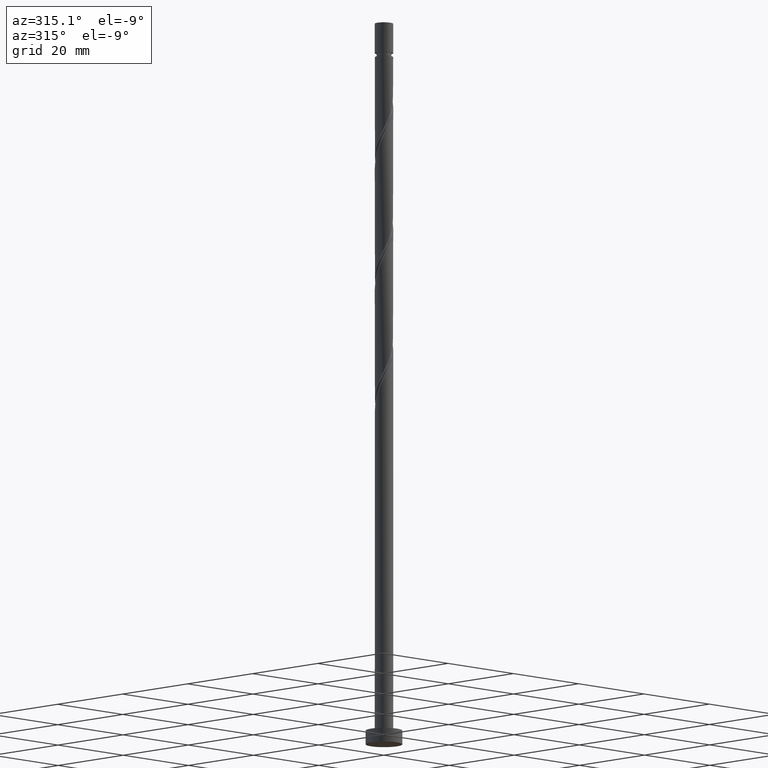
[diagram: clean part render]
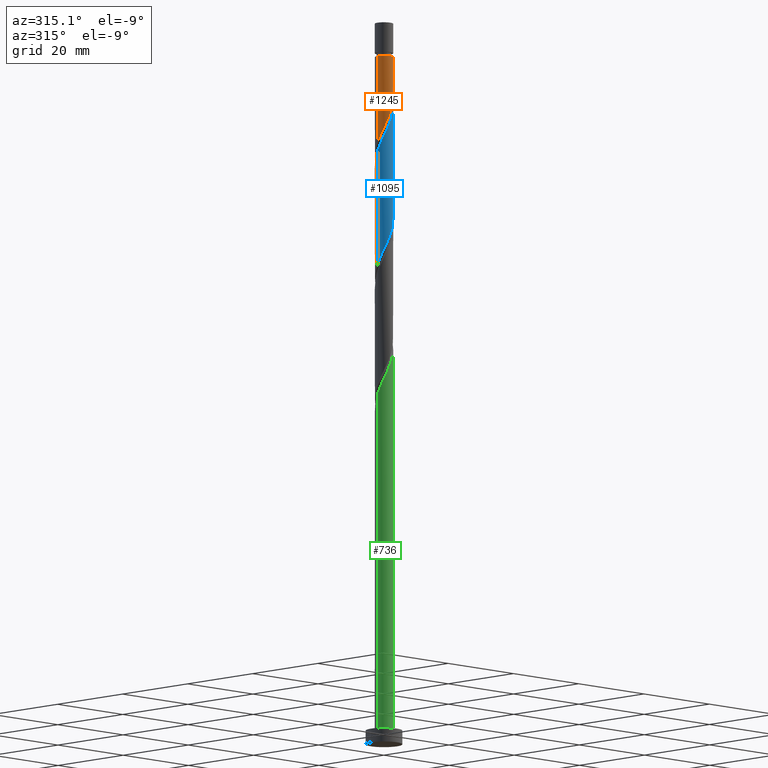
[diagram: same view with three faces highlighted in distinct colors, each labeled with its STEP entity id]
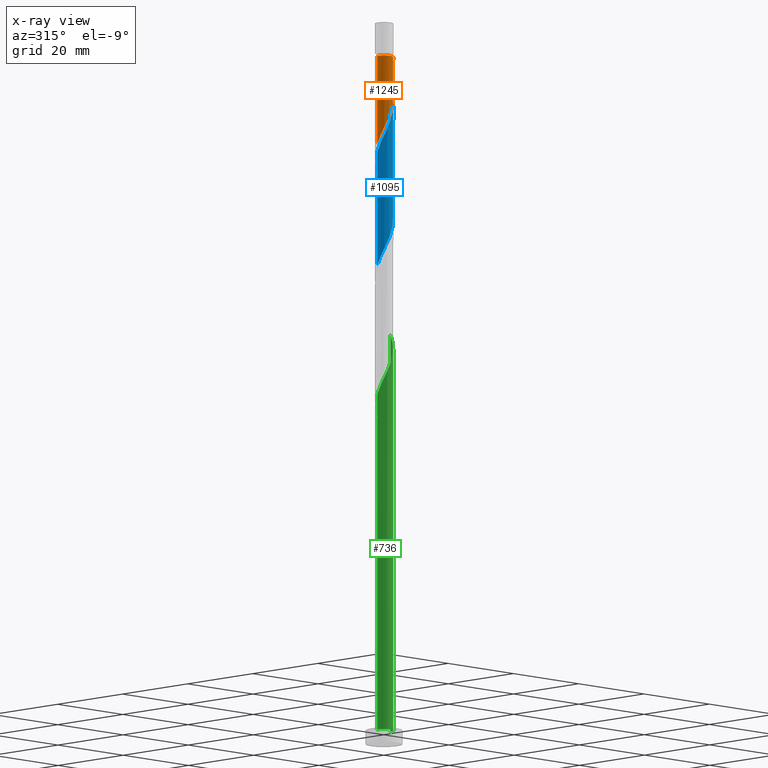
[diagram: x-ray of the same camera — body ghosted, the three highlighted faces saturated]
A machine part, auxiliary view with three faces highlighted in distinct colors.
The next image is the same camera in x-ray (body ghosted, the three faces saturated) — at least one of them is partly hidden behind the body in this view.
Their STEP definitions:

[orange] entity #1245 — the highlighted cylindrical surface (edge-blend (fillet) strip) has radius 2 mm, axis along (-0, -0, -1).
#27 = ORIENTED_EDGE ( 'NONE', *, *, #471, .F. ) ;
#46 = ORIENTED_EDGE ( 'NONE', *, *, #1607, .F. ) ;
#109 = CARTESIAN_POINT ( 'NONE',  ( 0.4568343776401059264, -1.968245701812300519, 139.4877479155001936 ) ) ;
#165 = CARTESIAN_POINT ( 'NONE',  ( 0.000000000000000000, 0.000000000000000000, 158.3300000000000125 ) ) ;
#203 = LINE ( 'NONE', #703, #1210 ) ;
#211 = CARTESIAN_POINT ( 'NONE',  ( -1.948211798543799889, -0.4521844623765077786, 132.8210812488334795 ) ) ;
#296 = AXIS2_PLACEMENT_3D ( 'NONE', #165, #676, #1464 ) ;
#298 = FACE_OUTER_BOUND ( 'NONE', #631, .T. ) ;
#320 = DIRECTION ( 'NONE',  ( -1.000000000000000000, 0.000000000000000000, 0.000000000000000000 ) ) ;
#329 = DIRECTION ( 'NONE',  ( -0.000000000000000000, -0.000000000000000000, -1.000000000000000000 ) ) ;
#341 = CIRCLE ( 'NONE', #1289, 1.999999999999994005 ) ;
#350 = VERTEX_POINT ( 'NONE', #1237 ) ;
#376 = VERTEX_POINT ( 'NONE', #1494 ) ;
#383 = CARTESIAN_POINT ( 'NONE',  ( -1.188337955536406865, -1.634179211325358594, 135.8513842791364823 ) ) ;
#420 = VERTEX_POINT ( 'NONE', #829 ) ;
#422 = EDGE_CURVE ( 'NONE', #350, #1340, #963, .T. ) ;
#440 = CARTESIAN_POINT ( 'NONE',  ( 0.000000000000000000, 0.000000000000000000, 151.0028994306516665 ) ) ;
#471 = EDGE_CURVE ( 'NONE', #420, #376, #203, .T. ) ;
#473 = CARTESIAN_POINT ( 'NONE',  ( -0.6798004310727958632, -1.902776961498551467, 137.0635054912577289 ) ) ;
#502 = CARTESIAN_POINT ( 'NONE',  ( 1.786663747202081876, -0.9436744384215536297, 143.1241115518637912 ) ) ;
#615 = CARTESIAN_POINT ( 'NONE',  ( -1.600603406160404418, -1.233189980288572629, 134.6392630670152926 ) ) ;
#624 = CARTESIAN_POINT ( 'NONE',  ( 0.1703224295138019428, -1.992734370156874713, 138.8816873094395703 ) ) ;
#631 = EDGE_LOOP ( 'NONE', ( #27, #813, #1444, #46 ) ) ;
#676 = DIRECTION ( 'NONE',  ( -0.000000000000000000, -0.000000000000000000, -1.000000000000000000 ) ) ;
#688 = DIRECTION ( 'NONE',  ( -0.000000000000000000, -0.000000000000000000, -1.000000000000000000 ) ) ;
#703 = CARTESIAN_POINT ( 'NONE',  ( 2.000000000000000000, 2.449293598294705921E-16, 158.3300000000000125 ) ) ;
#729 = CARTESIAN_POINT ( 'NONE',  ( -1.883197487972271267, -0.7322950311120137723, 133.4271418548941028 ) ) ;
#742 = CARTESIAN_POINT ( 'NONE',  ( 1.980155124014550738, -0.4020876473299553888, 144.3362327639850378 ) ) ;
#756 =( BOUNDED_CURVE ( )  B_SPLINE_CURVE ( 2, ( #1624, #1253, #1129, #742, #1621, #502, #1259, #1528, #1155, #1017, #1370, #109, #624, #886, #1502, #473, #1659, #383, #1117, #615, #1136, #729, #211, #1249, #1535 ),
 .UNSPECIFIED., .F., .T. ) 
 B_SPLINE_CURVE_WITH_KNOTS ( ( 3, 2, 2, 2, 2, 2, 2, 2, 2, 2, 2, 2, 3 ),
 ( 0.3045252162417514397, 0.3068181818181818232, 0.3181818181818181768, 0.3295454545454545303, 0.3409090909090908839, 0.3522727272727272929, 0.3636363636363636465, 0.3750000000000000000, 0.3863636363636363535, 0.3977272727272727071, 0.4090909090909091161, 0.4204545454545454697, 0.4295252162417514952 ),
 .UNSPECIFIED. ) 
 CURVE ( )  GEOMETRIC_REPRESENTATION_ITEM ( )  RATIONAL_B_SPLINE_CURVE ( ( 0.9061101570135619010, 0.9072237824201440093, 0.9090909090909213841, 0.8998376744372236224, 0.9090909090909213841, 0.8998376744372236224, 0.9090909090909213841, 0.8998376744372236224, 0.9090909090909213841, 0.8998376744372236224, 0.9090909090909213841, 0.8998376744372236224, 0.9090909090909213841, 0.8998376744372236224, 0.9090909090909213841, 0.8998376744372236224, 0.9090909090909213841, 0.8998376744372236224, 0.9090909090909213841, 0.8998376744372236224, 0.9090909090909213841, 0.8998376744372236224, 0.9090909090909213841, 0.9017048011080009973, 0.9061101570135619010 ) ) 
 REPRESENTATION_ITEM ( '' )  );
#806 = CYLINDRICAL_SURFACE ( 'NONE', #296, 2.000000000000000000 ) ;
#813 = ORIENTED_EDGE ( 'NONE', *, *, #1489, .T. ) ;
#829 = CARTESIAN_POINT ( 'NONE',  ( 1.999999999999994005, 2.449293598294701977E-16, 151.0028994306516665 ) ) ;
#849 = CARTESIAN_POINT ( 'NONE',  ( -2.000000000000000000, 0.000000000000000000, 158.3300000000000125 ) ) ;
#886 = CARTESIAN_POINT ( 'NONE',  ( -0.1161895186125009444, -2.017223038501448240, 138.2756267033789186 ) ) ;
#963 = LINE ( 'NONE', #849, #1601 ) ;
#1017 = CARTESIAN_POINT ( 'NONE',  ( 0.9928482695149667414, -1.759812803970227879, 140.6998691276213549 ) ) ;
#1117 = CARTESIAN_POINT ( 'NONE',  ( -1.394470680848406419, -1.433684595806965500, 135.2453236730759158 ) ) ;
#1129 = CARTESIAN_POINT ( 'NONE',  ( 1.996690616564939402, -0.1150068768444772321, 144.9422933700455758 ) ) ;
#1136 = CARTESIAN_POINT ( 'NONE',  ( -1.741900447066337954, -0.9827425057002935338, 134.0332024609546977 ) ) ;
#1155 = CARTESIAN_POINT ( 'NONE',  ( 1.220637884402353768, -1.584311571365224047, 141.3059297336819782 ) ) ;
#1210 = VECTOR ( 'NONE', #1371, 1000.000000000000000 ) ;
#1237 = CARTESIAN_POINT ( 'NONE',  ( -1.999999999999994005, 0.000000000000000000, 151.0028994306516665 ) ) ;
#1245 = ADVANCED_FACE ( 'NONE', ( #298 ), #806, .T. ) ;
#1249 = CARTESIAN_POINT ( 'NONE',  ( -2.000000000000000888, -0.2290578547702420975, 132.3383138629238545 ) ) ;
#1253 = CARTESIAN_POINT ( 'NONE',  ( 1.999999999999999112, -0.05755105304764763369, 145.0635892385676584 ) ) ;
#1259 = CARTESIAN_POINT ( 'NONE',  ( 1.617545623245911779, -1.176242388590886367, 142.5180509458032247 ) ) ;
#1289 = AXIS2_PLACEMENT_3D ( 'NONE', #440, #688, #320 ) ;
#1340 = VERTEX_POINT ( 'NONE', #1353 ) ;
#1353 = CARTESIAN_POINT ( 'NONE',  ( -2.000000000000000000, 1.734991201605581417E-15, 131.8523539099525408 ) ) ;
#1370 = CARTESIAN_POINT ( 'NONE',  ( 0.7248413235775362784, -1.864029252891264088, 140.0938085215607884 ) ) ;
#1371 = DIRECTION ( 'NONE',  ( -0.000000000000000000, -0.000000000000000000, -1.000000000000000000 ) ) ;
#1444 = ORIENTED_EDGE ( 'NONE', *, *, #422, .T. ) ;
#1464 = DIRECTION ( 'NONE',  ( -1.000000000000000000, 0.000000000000000000, 0.000000000000000000 ) ) ;
#1489 = EDGE_CURVE ( 'NONE', #420, #350, #341, .T. ) ;
#1494 = CARTESIAN_POINT ( 'NONE',  ( 1.999999999999999556, 5.907944177881074593E-16, 145.1856872432858836 ) ) ;
#1502 = CARTESIAN_POINT ( 'NONE',  ( -0.3979949748426483969, -1.959999999999999964, 137.6695660973183521 ) ) ;
#1528 = CARTESIAN_POINT ( 'NONE',  ( 1.448427499289742348, -1.408810338760219549, 141.9119903397425446 ) ) ;
#1535 = CARTESIAN_POINT ( 'NONE',  ( -2.000000000000000000, 1.734991201605581417E-15, 131.8523539099525408 ) ) ;
#1601 = VECTOR ( 'NONE', #329, 1000.000000000000000 ) ;
#1607 = EDGE_CURVE ( 'NONE', #376, #1340, #756, .T. ) ;
#1621 = CARTESIAN_POINT ( 'NONE',  ( 1.883409435608316418, -0.6728810428757545647, 143.7301721579244145 ) ) ;
#1624 = CARTESIAN_POINT ( 'NONE',  ( 1.999999999999999556, 5.907944177881074593E-16, 145.1856872432858836 ) ) ;
#1659 = CARTESIAN_POINT ( 'NONE',  ( -0.9340691933046018081, -1.768478086411955141, 136.4574448851971340 ) ) ;

[blue] entity #1095 — the highlighted cylindrical surface (edge-blend (fillet) strip) has radius 2 mm, axis along (-0, -0, -1).
#5 = CARTESIAN_POINT ( 'NONE',  ( -1.741900447066337954, -0.9827425057002935338, 107.3665357942880405 ) ) ;
#13 = CARTESIAN_POINT ( 'NONE',  ( 1.999999999999999556, -0.05755105304764623203, 118.3969225719010012 ) ) ;
#31 = CARTESIAN_POINT ( 'NONE',  ( 1.617545623245911779, -1.176242388590886367, 115.8513842791365107 ) ) ;
#55 = ORIENTED_EDGE ( 'NONE', *, *, #1024, .T. ) ;
#75 = CARTESIAN_POINT ( 'NONE',  ( 2.000000000000003553, 1.046977449244738821E-15, 143.4867782846841067 ) ) ;
#80 = VERTEX_POINT ( 'NONE', #784 ) ;
#94 = VERTEX_POINT ( 'NONE', #1307 ) ;
#103 = CARTESIAN_POINT ( 'NONE',  ( -0.1703224295138032196, -1.992734370156877821, 136.4574448851970772 ) ) ;
#117 = CARTESIAN_POINT ( 'NONE',  ( 1.741900447066339952, -0.9827425057002954212, 141.3059297336819213 ) ) ;
#123 = CARTESIAN_POINT ( 'NONE',  ( 1.448427499289742348, -1.408810338760219549, 115.2453236730759016 ) ) ;
#146 = VERTEX_POINT ( 'NONE', #75 ) ;
#150 = EDGE_CURVE ( 'NONE', #146, #1570, #1604, .T. ) ;
#219 = CARTESIAN_POINT ( 'NONE',  ( 1.948211798543802775, -0.4521844623765089999, 142.5180509458031679 ) ) ;
#237 = CARTESIAN_POINT ( 'NONE',  ( 1.188337955536409529, -1.634179211325361258, 139.4877479155001936 ) ) ;
#246 =( BOUNDED_CURVE ( )  B_SPLINE_CURVE ( 2, ( #600, #896, #1631, #730, #1008, #492, #377, #1513, #484, #1118, #888, #1415, #103, #1520, #1643, #1407, #754, #237, #366, #474, #117, #1157, #219, #984, #878 ),
 .UNSPECIFIED., .F., .T. ) 
 B_SPLINE_CURVE_WITH_KNOTS ( ( 3, 2, 2, 2, 2, 2, 2, 2, 2, 2, 2, 2, 3 ),
 ( 0.5545252162417516617, 0.5568181818181818787, 0.5681818181818181213, 0.5795454545454545858, 0.5909090909090908283, 0.6022727272727272929, 0.6136363636363636465, 0.6250000000000000000, 0.6363636363636363535, 0.6477272727272727071, 0.6590909090909091717, 0.6704545454545454142, 0.6795252162417515507 ),
 .UNSPECIFIED. ) 
 CURVE ( )  GEOMETRIC_REPRESENTATION_ITEM ( )  RATIONAL_B_SPLINE_CURVE ( ( 0.9061101570135694505, 0.9072237824201515588, 0.9090909090909289336, 0.8998376744372310609, 0.9090909090909289336, 0.8998376744372310609, 0.9090909090909289336, 0.8998376744372310609, 0.9090909090909289336, 0.8998376744372310609, 0.9090909090909289336, 0.8998376744372310609, 0.9090909090909289336, 0.8998376744372310609, 0.9090909090909289336, 0.8998376744372310609, 0.9090909090909289336, 0.8998376744372310609, 0.9090909090909289336, 0.8998376744372310609, 0.9090909090909289336, 0.8998376744372310609, 0.9090909090909289336, 0.9017048011080084358, 0.9061101570135693395 ) ) 
 REPRESENTATION_ITEM ( '' )  );
#262 = CARTESIAN_POINT ( 'NONE',  ( -1.600603406160404418, -1.233189980288572629, 107.9725964003486212 ) ) ;
#274 = CARTESIAN_POINT ( 'NONE',  ( -0.6798004310727958632, -1.902776961498551467, 110.3968388245910717 ) ) ;
#280 = EDGE_CURVE ( 'NONE', #1570, #94, #985, .T. ) ;
#282 = CARTESIAN_POINT ( 'NONE',  ( -1.883197487972271267, -0.7322950311120137723, 106.7604751882274030 ) ) ;
#292 = CARTESIAN_POINT ( 'NONE',  ( -2.000000000000000888, -0.2290578547702420975, 105.6716471962571831 ) ) ;
#338 = VECTOR ( 'NONE', #1582, 1000.000000000000000 ) ;
#362 = DIRECTION ( 'NONE',  ( -1.000000000000000000, 0.000000000000000000, 0.000000000000000000 ) ) ;
#366 = CARTESIAN_POINT ( 'NONE',  ( 1.394470680848407751, -1.433684595806967943, 140.0938085215606748 ) ) ;
#370 = DIRECTION ( 'NONE',  ( -0.000000000000000000, -0.000000000000000000, -1.000000000000000000 ) ) ;
#377 = CARTESIAN_POINT ( 'NONE',  ( -1.617545623245914443, -1.176242388590888366, 132.8210812488334511 ) ) ;
#396 = CARTESIAN_POINT ( 'NONE',  ( 1.996690616564939402, -0.1150068768444772321, 118.2756267033789470 ) ) ;
#415 = CARTESIAN_POINT ( 'NONE',  ( 0.4568343776401059264, -1.968245701812300519, 112.8210812488334938 ) ) ;
#463 = CARTESIAN_POINT ( 'NONE',  ( 2.000000000000000000, 2.449293598294705921E-16, 158.3300000000000125 ) ) ;
#474 = CARTESIAN_POINT ( 'NONE',  ( 1.600603406160407305, -1.233189980288575738, 140.6998691276213265 ) ) ;
#484 = CARTESIAN_POINT ( 'NONE',  ( -1.220637884402356876, -1.584311571365225380, 134.0332024609546409 ) ) ;
#488 = DIRECTION ( 'NONE',  ( -0.000000000000000000, -0.000000000000000000, -1.000000000000000000 ) ) ;
#492 = CARTESIAN_POINT ( 'NONE',  ( -1.786663747202085206, -0.9436744384215547399, 132.2150206427728563 ) ) ;
#544 = CARTESIAN_POINT ( 'NONE',  ( 1.999999999999999556, -2.191174233062221259E-15, 118.5190205766192122 ) ) ;
#566 = EDGE_LOOP ( 'NONE', ( #639, #1309, #55, #725 ) ) ;
#600 = CARTESIAN_POINT ( 'NONE',  ( -2.000000000000003553, -1.151675194169212802E-15, 130.1534449513507923 ) ) ;
#636 = CARTESIAN_POINT ( 'NONE',  ( -0.1161895186125009444, -2.017223038501448240, 111.6089600367122756 ) ) ;
#639 = ORIENTED_EDGE ( 'NONE', *, *, #150, .F. ) ;
#641 = EDGE_CURVE ( 'NONE', #80, #146, #246, .T. ) ;
#725 = ORIENTED_EDGE ( 'NONE', *, *, #280, .F. ) ;
#726 = LINE ( 'NONE', #734, #1629 ) ;
#730 = CARTESIAN_POINT ( 'NONE',  ( -1.980155124014554291, -0.4020876473299552778, 131.0028994306516665 ) ) ;
#734 = CARTESIAN_POINT ( 'NONE',  ( -2.000000000000000000, 0.000000000000000000, 158.3300000000000125 ) ) ;
#754 = CARTESIAN_POINT ( 'NONE',  ( 0.9340691933046020301, -1.768478086411958028, 138.8816873094395419 ) ) ;
#772 = CARTESIAN_POINT ( 'NONE',  ( -2.000000000000000000, 1.734991201605581417E-15, 105.1856872432858836 ) ) ;
#784 = CARTESIAN_POINT ( 'NONE',  ( -2.000000000000003553, -1.151675194169212802E-15, 130.1534449513507923 ) ) ;
#788 = CARTESIAN_POINT ( 'NONE',  ( -1.948211798543799889, -0.4521844623765077786, 106.1544145821668224 ) ) ;
#878 = CARTESIAN_POINT ( 'NONE',  ( 2.000000000000003553, 1.046977449244738821E-15, 143.4867782846841067 ) ) ;
#888 = CARTESIAN_POINT ( 'NONE',  ( -0.7248413235775382768, -1.864029252891266530, 135.2453236730758874 ) ) ;
#896 = CARTESIAN_POINT ( 'NONE',  ( -2.000000000000003109, -0.05755105304765149865, 130.2755429560689890 ) ) ;
#901 = CARTESIAN_POINT ( 'NONE',  ( -1.188337955536406865, -1.634179211325358594, 109.1847176124698251 ) ) ;
#931 = CARTESIAN_POINT ( 'NONE',  ( 0.1703224295138019428, -1.992734370156874713, 112.2150206427728705 ) ) ;
#964 = AXIS2_PLACEMENT_3D ( 'NONE', #1636, #488, #362 ) ;
#984 = CARTESIAN_POINT ( 'NONE',  ( 2.000000000000004441, -0.2290578547702423473, 143.0008183317128498 ) ) ;
#985 =( BOUNDED_CURVE ( )  B_SPLINE_CURVE ( 2, ( #544, #13, #396, #1175, #1565, #1284, #31, #123, #1421, #1051, #1299, #415, #931, #636, #1060, #274, #1439, #901, #1557, #262, #5, #282, #788, #292, #772 ),
 .UNSPECIFIED., .F., .T. ) 
 B_SPLINE_CURVE_WITH_KNOTS ( ( 3, 2, 2, 2, 2, 2, 2, 2, 2, 2, 2, 2, 3 ),
 ( 0.5545252162417513286, 0.5568181818181817677, 0.5681818181818182323, 0.5795454545454545858, 0.5909090909090909394, 0.6022727272727272929, 0.6136363636363636465, 0.6250000000000000000, 0.6363636363636363535, 0.6477272727272727071, 0.6590909090909090606, 0.6704545454545454142, 0.6795252162417514397 ),
 .UNSPECIFIED. ) 
 CURVE ( )  GEOMETRIC_REPRESENTATION_ITEM ( )  RATIONAL_B_SPLINE_CURVE ( ( 0.9061101570135616790, 0.9072237824201438983, 0.9090909090909213841, 0.8998376744372236224, 0.9090909090909213841, 0.8998376744372236224, 0.9090909090909213841, 0.8998376744372236224, 0.9090909090909213841, 0.8998376744372236224, 0.9090909090909213841, 0.8998376744372236224, 0.9090909090909213841, 0.8998376744372236224, 0.9090909090909213841, 0.8998376744372236224, 0.9090909090909213841, 0.8998376744372236224, 0.9090909090909213841, 0.8998376744372236224, 0.9090909090909213841, 0.8998376744372236224, 0.9090909090909213841, 0.9017048011080009973, 0.9061101570135619010 ) ) 
 REPRESENTATION_ITEM ( '' )  );
#1008 = CARTESIAN_POINT ( 'NONE',  ( -1.883409435608319304, -0.6728810428757547868, 131.6089600367122330 ) ) ;
#1024 = EDGE_CURVE ( 'NONE', #80, #94, #726, .T. ) ;
#1051 = CARTESIAN_POINT ( 'NONE',  ( 0.9928482695149667414, -1.759812803970227879, 114.0332024609546977 ) ) ;
#1060 = CARTESIAN_POINT ( 'NONE',  ( -0.3979949748426483969, -1.959999999999999964, 111.0028994306516665 ) ) ;
#1095 = ADVANCED_FACE ( 'NONE', ( #1382 ), #1143, .T. ) ;
#1118 = CARTESIAN_POINT ( 'NONE',  ( -0.9928482695149695170, -1.759812803970230322, 134.6392630670153210 ) ) ;
#1143 = CYLINDRICAL_SURFACE ( 'NONE', #964, 2.000000000000000000 ) ;
#1157 = CARTESIAN_POINT ( 'NONE',  ( 1.883197487972274820, -0.7322950311120153266, 141.9119903397425446 ) ) ;
#1175 = CARTESIAN_POINT ( 'NONE',  ( 1.980155124014550738, -0.4020876473299553888, 117.6695660973183379 ) ) ;
#1284 = CARTESIAN_POINT ( 'NONE',  ( 1.786663747202081876, -0.9436744384215536297, 116.4574448851971198 ) ) ;
#1299 = CARTESIAN_POINT ( 'NONE',  ( 0.7248413235775362784, -1.864029252891264088, 113.4271418548941028 ) ) ;
#1307 = CARTESIAN_POINT ( 'NONE',  ( -2.000000000000000000, 1.734991201605581417E-15, 105.1856872432858836 ) ) ;
#1309 = ORIENTED_EDGE ( 'NONE', *, *, #641, .F. ) ;
#1380 = CARTESIAN_POINT ( 'NONE',  ( 1.999999999999999556, -2.191174233062221259E-15, 118.5190205766192122 ) ) ;
#1382 = FACE_OUTER_BOUND ( 'NONE', #566, .T. ) ;
#1407 = CARTESIAN_POINT ( 'NONE',  ( 0.6798004310727964183, -1.902776961498555464, 138.2756267033789470 ) ) ;
#1415 = CARTESIAN_POINT ( 'NONE',  ( -0.4568343776401067036, -1.968245701812304516, 135.8513842791364823 ) ) ;
#1421 = CARTESIAN_POINT ( 'NONE',  ( 1.220637884402353768, -1.584311571365224047, 114.6392630670153210 ) ) ;
#1439 = CARTESIAN_POINT ( 'NONE',  ( -0.9340691933046018081, -1.768478086411955141, 109.7907782185304484 ) ) ;
#1513 = CARTESIAN_POINT ( 'NONE',  ( -1.448427499289744125, -1.408810338760221548, 133.4271418548940744 ) ) ;
#1520 = CARTESIAN_POINT ( 'NONE',  ( 0.1161895186125001672, -2.017223038501451349, 137.0635054912577004 ) ) ;
#1557 = CARTESIAN_POINT ( 'NONE',  ( -1.394470680848406419, -1.433684595806965500, 108.5786570064092729 ) ) ;
#1565 = CARTESIAN_POINT ( 'NONE',  ( 1.883409435608316418, -0.6728810428757545647, 117.0635054912577431 ) ) ;
#1570 = VERTEX_POINT ( 'NONE', #1380 ) ;
#1582 = DIRECTION ( 'NONE',  ( -0.000000000000000000, -0.000000000000000000, -1.000000000000000000 ) ) ;
#1604 = LINE ( 'NONE', #463, #338 ) ;
#1629 = VECTOR ( 'NONE', #370, 1000.000000000000000 ) ;
#1631 = CARTESIAN_POINT ( 'NONE',  ( -1.996690616564942955, -0.1150068768444765244, 130.3968388245910148 ) ) ;
#1636 = CARTESIAN_POINT ( 'NONE',  ( 0.000000000000000000, 0.000000000000000000, 158.3300000000000125 ) ) ;
#1643 = CARTESIAN_POINT ( 'NONE',  ( 0.3979949748426481193, -1.960000000000002629, 137.6695660973183237 ) ) ;

[green] entity #736 — the highlighted cylindrical surface (edge-blend (fillet) strip) has radius 2 mm, axis along (-0, -0, -1).
#19 = EDGE_LOOP ( 'NONE', ( #1193, #297, #1406, #346 ) ) ;
#47 = CARTESIAN_POINT ( 'NONE',  ( 0.000000000000000000, 0.000000000000000000, 3.000000000000000000 ) ) ;
#52 = CARTESIAN_POINT ( 'NONE',  ( 2.000000000000003553, 1.046977449244738821E-15, 90.15344495135077807 ) ) ;
#69 = CARTESIAN_POINT ( 'NONE',  ( -1.883409435608319304, -0.6728810428757547868, 78.27562670337891859 ) ) ;
#83 = CARTESIAN_POINT ( 'NONE',  ( -2.000000000000003109, 9.998634640287257072E-15, 76.82011161801740684 ) ) ;
#86 = VERTEX_POINT ( 'NONE', #1055 ) ;
#110 = CYLINDRICAL_SURFACE ( 'NONE', #941, 2.000000000000000000 ) ;
#180 = CARTESIAN_POINT ( 'NONE',  ( 1.600603406160407305, -1.233189980288575738, 87.36653579428804051 ) ) ;
#207 = VECTOR ( 'NONE', #1134, 1000.000000000000000 ) ;
#212 = CARTESIAN_POINT ( 'NONE',  ( 0.1161895186125001672, -2.017223038501451349, 83.73017215792440027 ) ) ;
#297 = ORIENTED_EDGE ( 'NONE', *, *, #369, .F. ) ;
#318 = CARTESIAN_POINT ( 'NONE',  ( 0.3979949748426481193, -1.960000000000002629, 84.33623276398496671 ) ) ;
#346 = ORIENTED_EDGE ( 'NONE', *, *, #1200, .T. ) ;
#354 = CARTESIAN_POINT ( 'NONE',  ( -2.000000000000003109, 9.998634640287257072E-15, 76.82011161801742105 ) ) ;
#369 = EDGE_CURVE ( 'NONE', #758, #86, #481, .T. ) ;
#455 = CARTESIAN_POINT ( 'NONE',  ( 1.948211798543802775, -0.4521844623765089999, 89.18471761246983931 ) ) ;
#464 = CARTESIAN_POINT ( 'NONE',  ( -1.996690616564942955, -0.1150068768444765244, 77.06350549125771465 ) ) ;
#481 =( BOUNDED_CURVE ( )  B_SPLINE_CURVE ( 2, ( #83, #842, #464, #1341, #69, #1474, #1615, #835, #973, #1485, #1096, #562, #1589, #212, #318, #1356, #581, #1605, #572, #180, #1090, #697, #455, #819, #52 ),
 .UNSPECIFIED., .F., .T. ) 
 B_SPLINE_CURVE_WITH_KNOTS ( ( 3, 2, 2, 2, 2, 2, 2, 2, 2, 2, 2, 2, 3 ),
 ( 0.05452521624175097475, 0.05681818181818176772, 0.06818181818181823228, 0.07954545454545458583, 0.09090909090909093937, 0.1022727272727272929, 0.1136363636363636465, 0.1250000000000000000, 0.1363636363636363535, 0.1477272727272727071, 0.1590909090909090606, 0.1704545454545454142, 0.1795252162417516062 ),
 .UNSPECIFIED. ) 
 CURVE ( )  GEOMETRIC_REPRESENTATION_ITEM ( )  RATIONAL_B_SPLINE_CURVE ( ( 0.9061101570135690064, 0.9072237824201512257, 0.9090909090909289336, 0.8998376744372310609, 0.9090909090909289336, 0.8998376744372310609, 0.9090909090909289336, 0.8998376744372310609, 0.9090909090909289336, 0.8998376744372310609, 0.9090909090909289336, 0.8998376744372310609, 0.9090909090909289336, 0.8998376744372310609, 0.9090909090909289336, 0.8998376744372310609, 0.9090909090909289336, 0.8998376744372310609, 0.9090909090909289336, 0.8998376744372310609, 0.9090909090909289336, 0.8998376744372310609, 0.9090909090909289336, 0.9017048011080083247, 0.9061101570135695615 ) ) 
 REPRESENTATION_ITEM ( '' )  );
#496 = CARTESIAN_POINT ( 'NONE',  ( -2.000000000000000000, 0.000000000000000000, 158.3300000000000125 ) ) ;
#500 = DIRECTION ( 'NONE',  ( -1.000000000000000000, 0.000000000000000000, 0.000000000000000000 ) ) ;
#511 = CARTESIAN_POINT ( 'NONE',  ( 2.000000000000000000, 2.449293598294705921E-16, 158.3300000000000125 ) ) ;
#562 = CARTESIAN_POINT ( 'NONE',  ( -0.4568343776401067036, -1.968245701812304516, 82.51805094580321054 ) ) ;
#572 = CARTESIAN_POINT ( 'NONE',  ( 1.394470680848407751, -1.433684595806967943, 86.76047518822738880 ) ) ;
#581 = CARTESIAN_POINT ( 'NONE',  ( 0.9340691933046020301, -1.768478086411958028, 85.54835397610622749 ) ) ;
#610 = DIRECTION ( 'NONE',  ( -0.000000000000000000, -0.000000000000000000, -1.000000000000000000 ) ) ;
#662 = CIRCLE ( 'NONE', #882, 2.000000000000000000 ) ;
#697 = CARTESIAN_POINT ( 'NONE',  ( 1.883197487972274820, -0.7322950311120153266, 88.57865700640927287 ) ) ;
#716 = VERTEX_POINT ( 'NONE', #744 ) ;
#736 = ADVANCED_FACE ( 'NONE', ( #1273 ), #110, .T. ) ;
#744 = CARTESIAN_POINT ( 'NONE',  ( -2.000000000000000000, 0.000000000000000000, 3.000000000000000000 ) ) ;
#758 = VERTEX_POINT ( 'NONE', #354 ) ;
#766 = EDGE_CURVE ( 'NONE', #86, #1455, #1258, .T. ) ;
#819 = CARTESIAN_POINT ( 'NONE',  ( 2.000000000000005329, -0.2290578547702387668, 89.66748499837949282 ) ) ;
#835 = CARTESIAN_POINT ( 'NONE',  ( -1.448427499289744125, -1.408810338760221548, 80.09380852156077424 ) ) ;
#842 = CARTESIAN_POINT ( 'NONE',  ( -2.000000000000003553, -0.05755105304763648288, 76.94220962273563202 ) ) ;
#882 = AXIS2_PLACEMENT_3D ( 'NONE', #47, #1172, #944 ) ;
#922 = CARTESIAN_POINT ( 'NONE',  ( 0.000000000000000000, 0.000000000000000000, 158.3300000000000125 ) ) ;
#941 = AXIS2_PLACEMENT_3D ( 'NONE', #922, #1191, #500 ) ;
#944 = DIRECTION ( 'NONE',  ( 1.000000000000000000, 0.000000000000000000, 0.000000000000000000 ) ) ;
#973 = CARTESIAN_POINT ( 'NONE',  ( -1.220637884402356876, -1.584311571365225380, 80.69986912762135489 ) ) ;
#987 = VECTOR ( 'NONE', #610, 1000.000000000000000 ) ;
#1002 = LINE ( 'NONE', #496, #987 ) ;
#1055 = CARTESIAN_POINT ( 'NONE',  ( 2.000000000000003553, 1.046977449244738821E-15, 90.15344495135077807 ) ) ;
#1090 = CARTESIAN_POINT ( 'NONE',  ( 1.741900447066339952, -0.9827425057002954212, 87.97259640034860695 ) ) ;
#1096 = CARTESIAN_POINT ( 'NONE',  ( -0.7248413235775382768, -1.864029252891266530, 81.91199033974255883 ) ) ;
#1134 = DIRECTION ( 'NONE',  ( -0.000000000000000000, -0.000000000000000000, -1.000000000000000000 ) ) ;
#1172 = DIRECTION ( 'NONE',  ( 0.000000000000000000, 0.000000000000000000, 1.000000000000000000 ) ) ;
#1191 = DIRECTION ( 'NONE',  ( -0.000000000000000000, -0.000000000000000000, -1.000000000000000000 ) ) ;
#1193 = ORIENTED_EDGE ( 'NONE', *, *, #766, .F. ) ;
#1200 = EDGE_CURVE ( 'NONE', #716, #1455, #662, .T. ) ;
#1258 = LINE ( 'NONE', #511, #207 ) ;
#1273 = FACE_OUTER_BOUND ( 'NONE', #19, .T. ) ;
#1341 = CARTESIAN_POINT ( 'NONE',  ( -1.980155124014554291, -0.4020876473299552778, 77.66956609731830952 ) ) ;
#1356 = CARTESIAN_POINT ( 'NONE',  ( 0.6798004310727964183, -1.902776961498555464, 84.94229337004561842 ) ) ;
#1406 = ORIENTED_EDGE ( 'NONE', *, *, #1561, .T. ) ;
#1455 = VERTEX_POINT ( 'NONE', #1600 ) ;
#1474 = CARTESIAN_POINT ( 'NONE',  ( -1.786663747202085206, -0.9436744384215547399, 78.88168730943954188 ) ) ;
#1485 = CARTESIAN_POINT ( 'NONE',  ( -0.9928482695149695170, -1.759812803970230322, 81.30592973368196397 ) ) ;
#1561 = EDGE_CURVE ( 'NONE', #758, #716, #1002, .T. ) ;
#1589 = CARTESIAN_POINT ( 'NONE',  ( -0.1703224295138032196, -1.992734370156877821, 83.12411155186377698 ) ) ;
#1600 = CARTESIAN_POINT ( 'NONE',  ( 2.000000000000000000, 2.449293598294705921E-16, 3.000000000000000000 ) ) ;
#1605 = CARTESIAN_POINT ( 'NONE',  ( 1.188337955536409529, -1.634179211325361258, 86.15441458216680815 ) ) ;
#1615 = CARTESIAN_POINT ( 'NONE',  ( -1.617545623245914443, -1.176242388590888366, 79.48774791550013674 ) ) ;